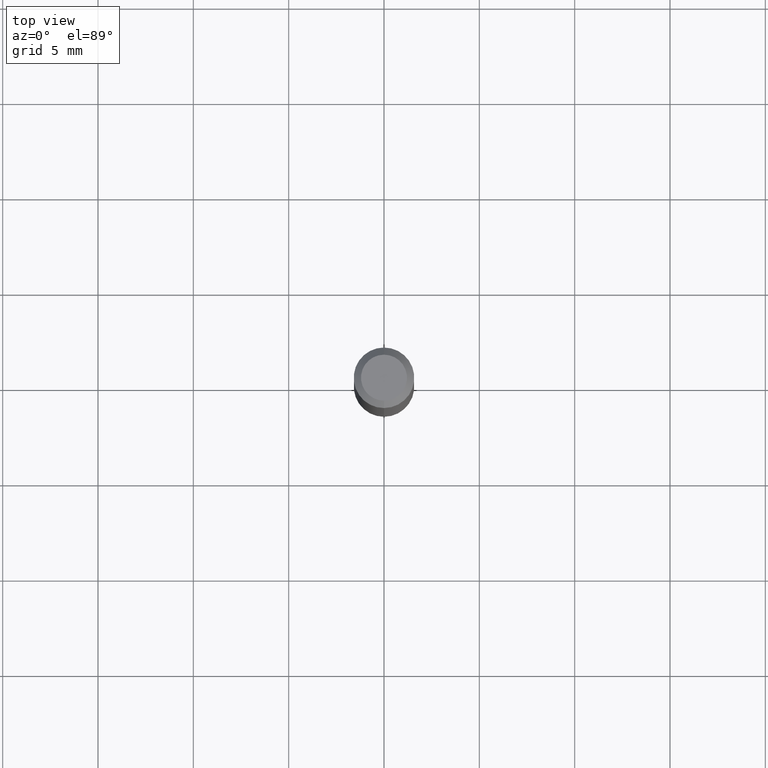
[diagram: clean part render]
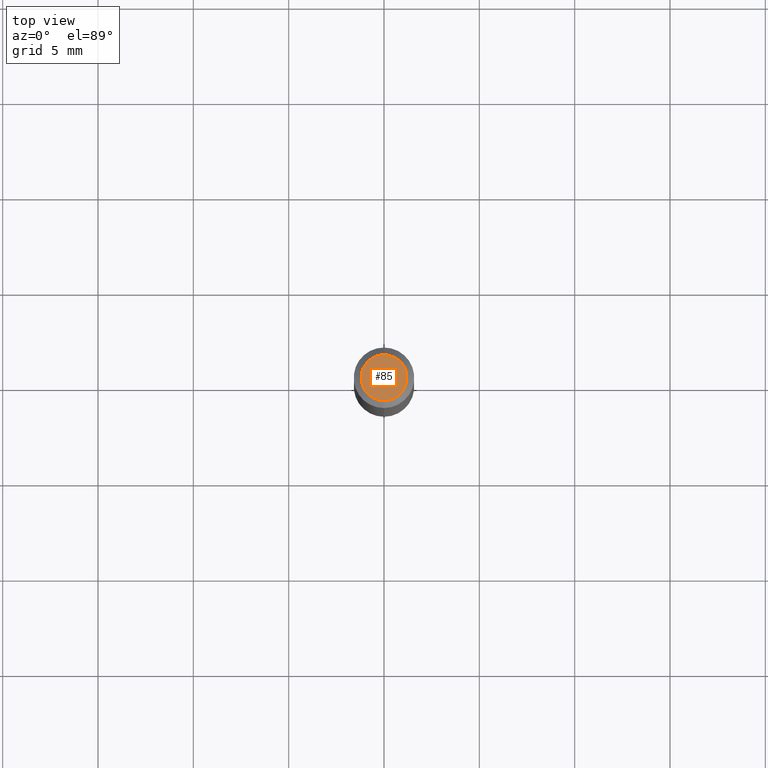
[diagram: same view with one face highlighted and labeled with its STEP entity id]
A machine part, top view. The second image highlights one B-rep face of the part: STEP entity #85.
In plain terms, the highlighted planar face has unit normal (0, -0, -1).
Its self-contained STEP definition (entity closure, byte-faithful):
#25 = DIRECTION ( 'NONE',  ( -2.445445466582800548E-29, 3.491514762482098518E-15, 1.000000000000000000 ) ) ;
#45 = FACE_OUTER_BOUND ( 'NONE', #275, .T. ) ;
#74 = VERTEX_POINT ( 'NONE', #88 ) ;
#85 = ADVANCED_FACE ( 'NONE', ( #45 ), #520, .F. ) ;
#88 = CARTESIAN_POINT ( 'NONE',  ( 3.840629472727447874E-16, 0.04749999999999999362, -1.947592745229184119E-16 ) ) ;
#114 = DIRECTION ( 'NONE',  ( -6.982962677686266711E-15, -1.000000000000000000, 3.491514762482098912E-15 ) ) ;
#126 = AXIS2_PLACEMENT_3D ( 'NONE', #357, #25, #114 ) ;
#158 = DIRECTION ( 'NONE',  ( -2.445445466582800548E-29, 3.491514762482098518E-15, 1.000000000000000000 ) ) ;
#165 = CARTESIAN_POINT ( 'NONE',  ( 3.316907271900976096E-16, 0.04749999999999999362, -1.803031128704090443E-16 ) ) ;
#172 = AXIS2_PLACEMENT_3D ( 'NONE', #193, #158, #188 ) ;
#185 = CARTESIAN_POINT ( 'NONE',  ( -3.773273898774340269E-16, -0.04749999999999999362, 1.369346279128809167E-16 ) ) ;
#188 = DIRECTION ( 'NONE',  ( -6.982962677686266711E-15, -1.000000000000000000, 3.491514762482098912E-15 ) ) ;
#193 = CARTESIAN_POINT ( 'NONE',  ( 7.070350995463433591E-46, -1.009478036371281801E-31, -2.891232330501874758E-17 ) ) ;
#269 = ORIENTED_EDGE ( 'NONE', *, *, #388, .T. ) ;
#275 = EDGE_LOOP ( 'NONE', ( #269, #384 ) ) ;
#338 = VERTEX_POINT ( 'NONE', #185 ) ;
#349 = EDGE_CURVE ( 'NONE', #338, #74, #353, .T. ) ;
#353 = CIRCLE ( 'NONE', #172, 0.04749999999999999362 ) ;
#357 = CARTESIAN_POINT ( 'NONE',  ( 7.070350995463433591E-46, -1.009478036371281801E-31, -2.891232330501874758E-17 ) ) ;
#360 = DIRECTION ( 'NONE',  ( 2.445445466582799988E-29, -3.491514762482098912E-15, -1.000000000000000000 ) ) ;
#384 = ORIENTED_EDGE ( 'NONE', *, *, #349, .T. ) ;
#388 = EDGE_CURVE ( 'NONE', #74, #338, #393, .T. ) ;
#393 = CIRCLE ( 'NONE', #126, 0.04749999999999999362 ) ;
#398 = DIRECTION ( 'NONE',  ( 6.982962677686265922E-15, 1.000000000000000000, -3.491514762482098912E-15 ) ) ;
#458 = AXIS2_PLACEMENT_3D ( 'NONE', #165, #360, #398 ) ;
#520 = PLANE ( 'NONE',  #458 ) ;